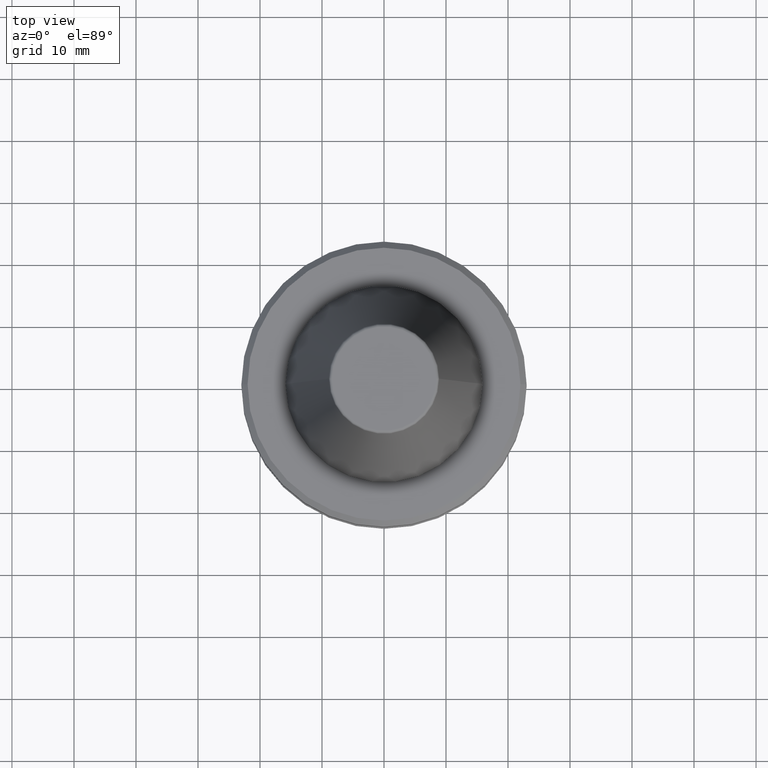
[diagram: clean part render]
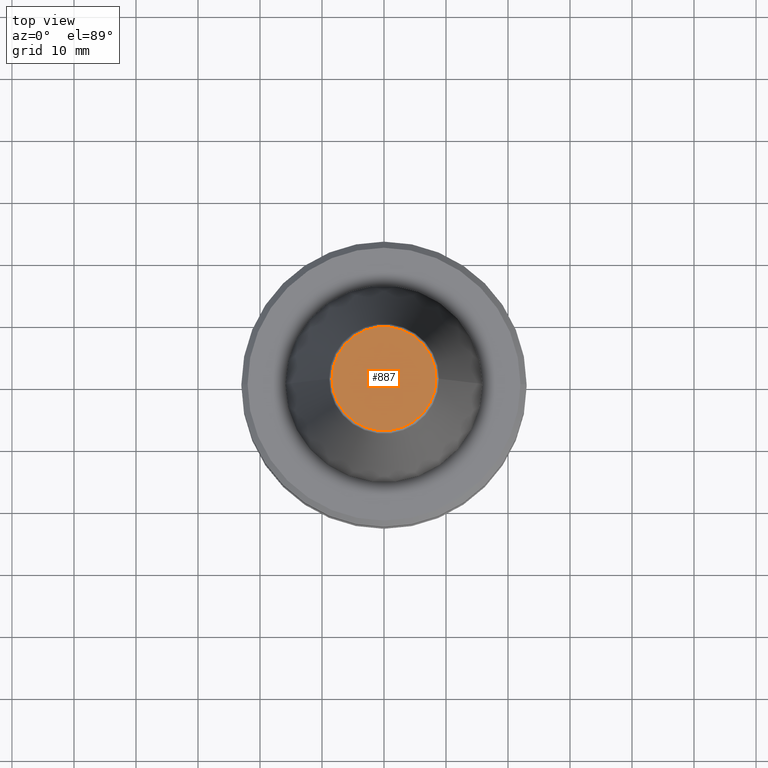
[diagram: same view with one face highlighted and labeled with its STEP entity id]
A machine part, top view. The second image highlights one B-rep face of the part: STEP entity #887.
In plain terms, the highlighted planar face has unit normal (0, 0, -1).
Its self-contained STEP definition (entity closure, byte-faithful):
#27 = EDGE_CURVE ( 'NONE', #205, #597, #736, .T. ) ;
#61 = DIRECTION ( 'NONE',  ( 1.000000000000000000, 0.0000000000000000000, 0.0000000000000000000 ) ) ;
#155 = CARTESIAN_POINT ( 'NONE',  ( 0.0000000000000000000, 0.0000000000000000000, 48.39999999999960100 ) ) ;
#161 = DIRECTION ( 'NONE',  ( -0.0000000000000000000, -0.0000000000000000000, 1.000000000000000000 ) ) ;
#194 = AXIS2_PLACEMENT_3D ( 'NONE', #803, #161, #61 ) ;
#205 = VERTEX_POINT ( 'NONE', #416 ) ;
#292 = ORIENTED_EDGE ( 'NONE', *, *, #27, .T. ) ;
#399 = FACE_OUTER_BOUND ( 'NONE', #792, .T. ) ;
#416 = CARTESIAN_POINT ( 'NONE',  ( 8.384228427309182100, 0.0000000000000000000, 48.39999999999960100 ) ) ;
#528 = DIRECTION ( 'NONE',  ( 0.0000000000000000000, 0.0000000000000000000, -1.000000000000000000 ) ) ;
#557 = CARTESIAN_POINT ( 'NONE',  ( 0.0000000000000000000, 8.384228427309182100, 48.39999999999960800 ) ) ;
#592 = CARTESIAN_POINT ( 'NONE',  ( -8.384228427309182100, 1.057067554674888800E-015, 48.39999999999960100 ) ) ;
#597 = VERTEX_POINT ( 'NONE', #592 ) ;
#600 = PLANE ( 'NONE',  #826 ) ;
#694 = DIRECTION ( 'NONE',  ( -0.0000000000000000000, -0.0000000000000000000, 1.000000000000000000 ) ) ;
#736 = CIRCLE ( 'NONE', #1041, 8.384228427309182100 ) ;
#792 = EDGE_LOOP ( 'NONE', ( #292, #929 ) ) ;
#799 = DIRECTION ( 'NONE',  ( 1.000000000000000000, 0.0000000000000000000, 0.0000000000000000000 ) ) ;
#803 = CARTESIAN_POINT ( 'NONE',  ( 0.0000000000000000000, 0.0000000000000000000, 48.39999999999960100 ) ) ;
#826 = AXIS2_PLACEMENT_3D ( 'NONE', #557, #528, #966 ) ;
#887 = ADVANCED_FACE ( 'NONE', ( #399 ), #600, .F. ) ;
#893 = CIRCLE ( 'NONE', #194, 8.384228427309182100 ) ;
#929 = ORIENTED_EDGE ( 'NONE', *, *, #965, .T. ) ;
#965 = EDGE_CURVE ( 'NONE', #597, #205, #893, .T. ) ;
#966 = DIRECTION ( 'NONE',  ( -1.000000000000000000, 0.0000000000000000000, -0.0000000000000000000 ) ) ;
#1041 = AXIS2_PLACEMENT_3D ( 'NONE', #155, #694, #799 ) ;